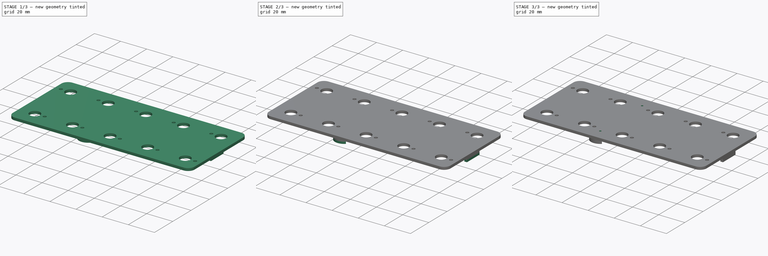
[diagram: build sequence overview — one tinted view per stage of 3, left to right]
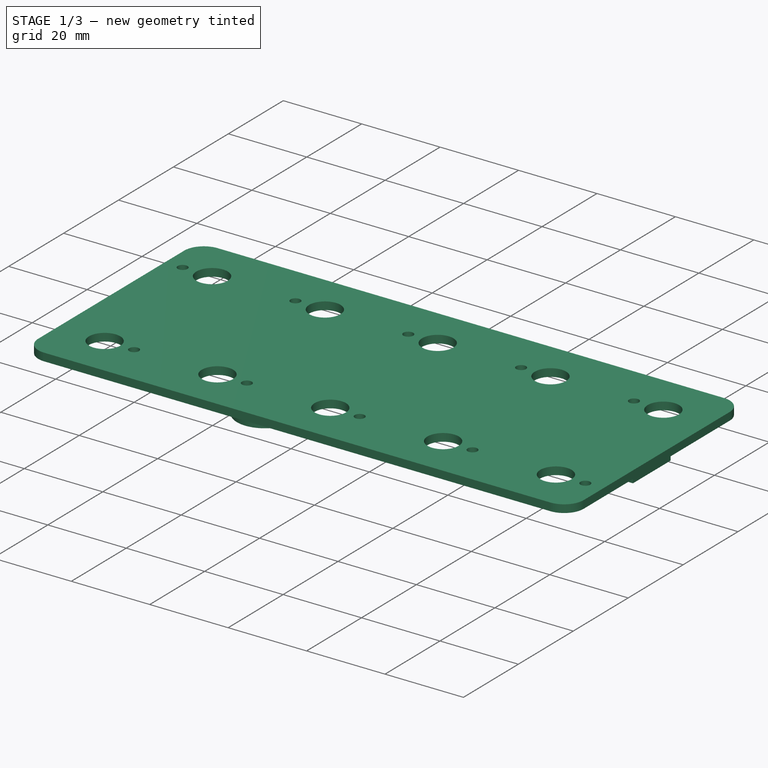
[diagram: stage 1 of 3 — iso view after this stage's code; geometry added in this stage tinted green]
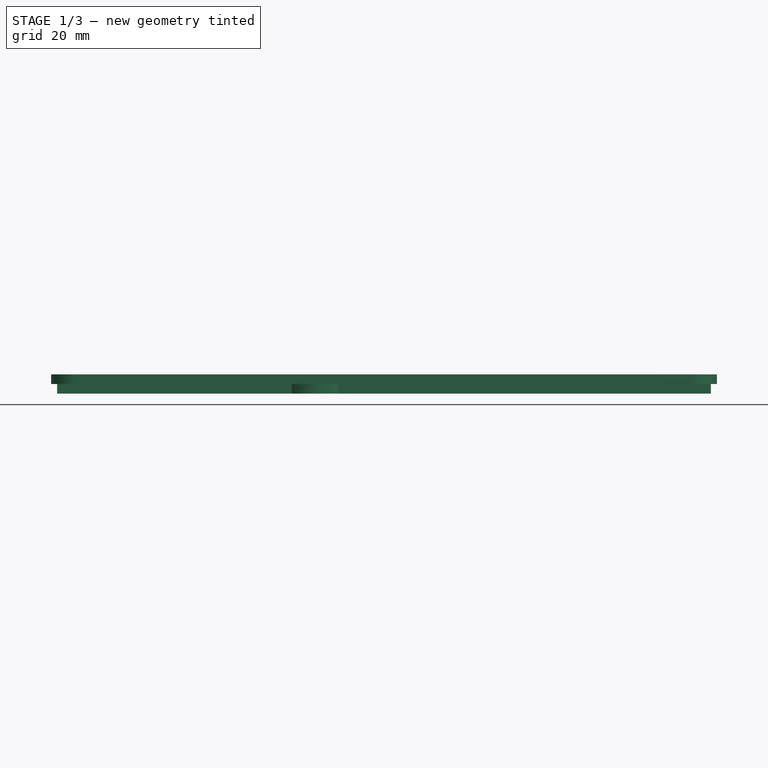
[diagram: stage 1 of 3 — front view after this stage's code; geometry added in this stage tinted green]
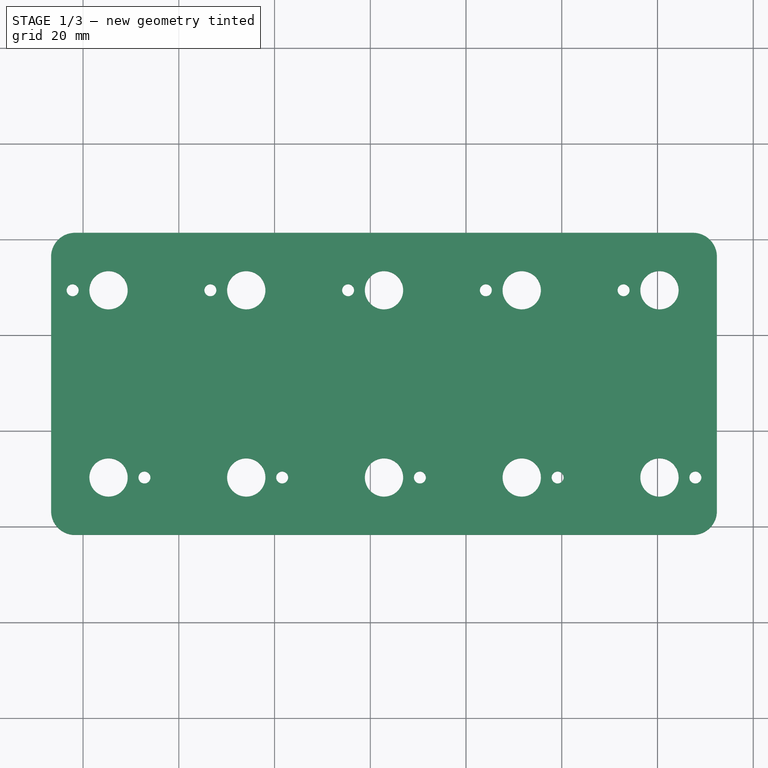
[diagram: stage 1 of 3 — top view after this stage's code; geometry added in this stage tinted green]
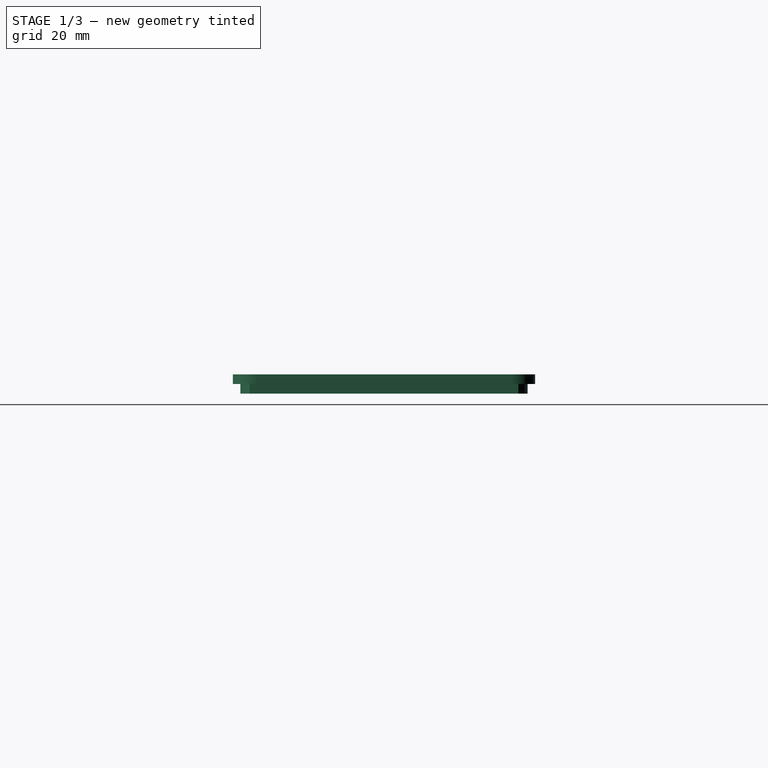
[diagram: stage 1 of 3 — right view after this stage's code; geometry added in this stage tinted green]
FCSTD DOCUMENT  (FreeCAD 0.21R33771 (Git))
Label: PT-10 Top Potentiometer
License: All rights reserved
LicenseURL: https://en.wikipedia.org/wiki/All_rights_reserved
objects: Part::Feature×25, Sketcher::SketchObject×5, PartDesign::Pad×3, App::Part×3, PartDesign::Pocket×2, PartDesign::Body×1
note: 41 computed .brp shape members not serialized (recipe doc carries the construction recipe); baked Part::Feature solids carry a one-line shape summary decoded from their .brp

FEATURE [Sketcher::SketchObject] Sketch
  FullyConstrained = false
  MapMode = 5
  Support = -> [XY_Plane]
  sketch-geometry (116):
    g0: LineSegment StartX=-116.205 StartY=81.635 StartZ=0 EndX=116.205 EndY=81.635 EndZ=0
    g1: LineSegment StartX=116.205 StartY=81.635 StartZ=0 EndX=116.205 EndY=-81.635 EndZ=0
    g2: LineSegment StartX=116.205 StartY=-81.635 StartZ=0 EndX=-116.205 EndY=-81.635 EndZ=0
    g3: LineSegment StartX=-116.205 StartY=-81.635 StartZ=0 EndX=-116.205 EndY=81.635 EndZ=0
    g4: Circle CenterX=-109.295 CenterY=73.045 CenterZ=0 NormalX=0 NormalY=0 NormalZ=1 AngleXU=0 Radius=1.725
    g5: Circle CenterX=109.295 CenterY=73.045 CenterZ=0 NormalX=0 NormalY=0 NormalZ=1 AngleXU=0 Radius=1.725
    g6: Circle CenterX=109.295 CenterY=-73.045 CenterZ=0 NormalX=0 NormalY=0 NormalZ=1 AngleXU=0 Radius=1.725
    g7: Circle CenterX=-109.295 CenterY=-73.045 CenterZ=0 NormalX=0 NormalY=0 NormalZ=1 AngleXU=0 Radius=1.725
    g8: Circle CenterX=-94.6821 CenterY=-10.6383 CenterZ=0 NormalX=0 NormalY=0 NormalZ=1 AngleXU=0 Radius=4
    g9: Circle CenterX=-65.9093 CenterY=-10.6383 CenterZ=0 NormalX=0 NormalY=0 NormalZ=1 AngleXU=0 Radius=4
    g10: Circle CenterX=-37.1364 CenterY=-10.6383 CenterZ=0 NormalX=0 NormalY=0 NormalZ=1 AngleXU=0 Radius=4
    g11: Circle CenterX=-8.36357 CenterY=-10.6383 CenterZ=0 NormalX=0 NormalY=0 NormalZ=1 AngleXU=0 Radius=4
    g12: Circle CenterX=20.4093 CenterY=-10.6383 CenterZ=0 NormalX=0 NormalY=0 NormalZ=1 AngleXU=0 Radius=4
    g13: Circle CenterX=-94.6821 CenterY=-49.7617 CenterZ=0 NormalX=0 NormalY=0 NormalZ=1 AngleXU=0 Radius=4
    g14: Circle CenterX=-65.9093 CenterY=-49.7617 CenterZ=0 NormalX=0 NormalY=0 NormalZ=1 AngleXU=0 Radius=4
    g15: Circle CenterX=-37.1364 CenterY=-49.7617 CenterZ=0 NormalX=0 NormalY=0 NormalZ=1 AngleXU=0 Radius=4
    g16: Circle CenterX=-8.36357 CenterY=-49.7617 CenterZ=0 NormalX=0 NormalY=0 NormalZ=1 AngleXU=0 Radius=4
    g17: Circle CenterX=20.4093 CenterY=-49.7617 CenterZ=0 NormalX=0 NormalY=0 NormalZ=1 AngleXU=0 Radius=4
    g18: LineSegment StartX=-83.4 StartY=63.635 StartZ=0 EndX=83.4 EndY=63.635 EndZ=0
    g19: LineSegment StartX=83.4 StartY=63.635 StartZ=0 EndX=83.4 EndY=21.235 EndZ=0
    g20: LineSegment StartX=83.4 StartY=21.235 StartZ=0 EndX=-83.4 EndY=21.235 EndZ=0
    g21: LineSegment StartX=45.9321 StartY=-1.7 StartZ=0 EndX=97.9321 EndY=-1.7 EndZ=0
    g22: LineSegment StartX=101.932 StartY=-5.7 StartZ=0 EndX=101.932 EndY=-54.7 EndZ=0
    g23: LineSegment StartX=97.9321 StartY=-58.7 StartZ=0 EndX=45.9321 EndY=-58.7 EndZ=0
    g24: LineSegment StartX=41.9321 StartY=-54.7 StartZ=0 EndX=41.9321 EndY=-5.7 EndZ=0
    g25: LineSegment StartX=101.932 StartY=-47.5117 StartZ=0 EndX=116.205 EndY=-47.5117 EndZ=0
    g26: ArcOfCircle CenterX=45.9321 CenterY=-5.7 CenterZ=0 NormalX=0 NormalY=0 NormalZ=1 AngleXU=0 Radius=4 StartAngle=1.5708 EndAngle=3.14159
    g27: GeomPoint X=41.9321 Y=-1.7 Z=0
    g28: ArcOfCircle CenterX=97.9321 CenterY=-5.7 CenterZ=0 NormalX=0 NormalY=0 NormalZ=1 AngleXU=0 Radius=4 StartAngle=0 EndAngle=1.5708
    g29: GeomPoint X=101.932 Y=-1.7 Z=0
    g30: ArcOfCircle CenterX=97.9321 CenterY=-54.7 CenterZ=0 NormalX=0 NormalY=0 NormalZ=1 AngleXU=0 Radius=4 StartAngle=4.71239 EndAngle=6.28319
    g31: GeomPoint X=101.932 Y=-58.7 Z=0
    g32: ArcOfCircle CenterX=45.9321 CenterY=-54.7 CenterZ=0 NormalX=0 NormalY=0 NormalZ=1 AngleXU=0 Radius=4 StartAngle=3.14159 EndAngle=4.71239
    g33: GeomPoint X=41.9321 Y=-58.7 Z=0
    g34: LineSegment StartX=63.7039 StartY=21.235 StartZ=0 EndX=63.7039 EndY=-1.7 EndZ=0
    g35: LineSegment StartX=63.7039 StartY=-58.7 StartZ=0 EndX=63.7039 EndY=-81.635 EndZ=0
    g36: Circle CenterX=-94.6821 CenterY=-10.6383 CenterZ=0 NormalX=0 NormalY=0 NormalZ=1 AngleXU=0 Radius=7.25
    g37: Circle CenterX=-65.9093 CenterY=-10.6383 CenterZ=0 NormalX=0 NormalY=0 NormalZ=1 AngleXU=0 Radius=7.25
    g38: Circle CenterX=-37.1364 CenterY=-10.6383 CenterZ=0 NormalX=0 NormalY=0 NormalZ=1 AngleXU=0 Radius=7.25
    g39: Circle CenterX=-8.36357 CenterY=-10.6383 CenterZ=0 NormalX=0 NormalY=0 NormalZ=1 AngleXU=0 Radius=7.25
    g40: Circle CenterX=20.4093 CenterY=-10.6383 CenterZ=0 NormalX=0 NormalY=0 NormalZ=1 AngleXU=0 Radius=7.25
    g41: Circle CenterX=-94.6821 CenterY=-49.7617 CenterZ=0 NormalX=0 NormalY=0 NormalZ=1 AngleXU=0 Radius=7.25
    g42: Circle CenterX=-65.9093 CenterY=-49.7617 CenterZ=0 NormalX=0 NormalY=0 NormalZ=1 AngleXU=0 Radius=7.25
    g43: Circle CenterX=-37.1364 CenterY=-49.7617 CenterZ=0 NormalX=0 NormalY=0 NormalZ=1 AngleXU=0 Radius=7.25
    g44: Circle CenterX=-8.36357 CenterY=-49.7617 CenterZ=0 NormalX=0 NormalY=0 NormalZ=1 AngleXU=0 Radius=7.25
    g45: Circle CenterX=20.4093 CenterY=-49.7617 CenterZ=0 NormalX=0 NormalY=0 NormalZ=1 AngleXU=0 Radius=7.25
    g46: LineSegment StartX=-101.932 StartY=-49.7617 StartZ=0 EndX=-116.205 EndY=-49.7617 EndZ=0
    g47: LineSegment StartX=-101.932 StartY=-49.7617 StartZ=0 EndX=-94.6821 EndY=-49.7617 EndZ=0
    g48: LineSegment StartX=-87.4321 StartY=-49.7617 StartZ=0 EndX=-73.1593 EndY=-49.7617 EndZ=0
    g49: LineSegment StartX=-58.6593 StartY=-49.7617 StartZ=0 EndX=-44.3864 EndY=-49.7617 EndZ=0
    g50: LineSegment StartX=-29.8864 StartY=-49.7617 StartZ=0 EndX=-15.6136 EndY=-49.7617 EndZ=0
    g51: LineSegment StartX=-1.11357 StartY=-49.7617 StartZ=0 EndX=13.1593 EndY=-49.7617 EndZ=0
    g52: LineSegment StartX=27.6593 StartY=-49.7617 StartZ=0 EndX=41.9321 EndY=-49.7617 EndZ=0
    g53: LineSegment StartX=-37.1364 StartY=-49.7617 StartZ=0 EndX=-37.1364 EndY=-57.0117 EndZ=0
    g54: LineSegment StartX=-37.1364 StartY=-57.0117 StartZ=0 EndX=-37.1364 EndY=-81.635 EndZ=0
    g55: LineSegment StartX=-37.1364 StartY=-42.5117 StartZ=0 EndX=-37.1364 EndY=-17.8883 EndZ=0
    g56: LineSegment StartX=-37.1364 StartY=-3.38833 StartZ=0 EndX=-37.1364 EndY=21.235 EndZ=0
    g57: Circle CenterX=-91.5 CenterY=65.935 CenterZ=0 NormalX=0 NormalY=0 NormalZ=1 AngleXU=0 Radius=1.5
    g58: Circle CenterX=-91.5 CenterY=18.935 CenterZ=0 NormalX=0 NormalY=0 NormalZ=1 AngleXU=0 Radius=1.5
    g59: Circle CenterX=91.5 CenterY=65.935 CenterZ=0 NormalX=0 NormalY=0 NormalZ=1 AngleXU=0 Radius=1.5
    g60: Circle CenterX=91.5 CenterY=18.935 CenterZ=0 NormalX=0 NormalY=0 NormalZ=1 AngleXU=0 Radius=1.5
    g61: LineSegment StartX=-83.4 StartY=21.235 StartZ=0 EndX=-83.4 EndY=42.435 EndZ=0
    g62: LineSegment StartX=-83.4 StartY=42.435 StartZ=0 EndX=-83.4 EndY=63.635 EndZ=0
    g63: LineSegment StartX=-83.4 StartY=42.435 StartZ=0 EndX=-91.5 EndY=42.435 EndZ=0
    g64: LineSegment StartX=-91.5 StartY=42.435 StartZ=0 EndX=-91.5 EndY=65.935 EndZ=0
    g65: LineSegment StartX=-91.5 StartY=42.435 StartZ=0 EndX=-91.5 EndY=18.935 EndZ=0
    g66: Circle CenterX=101.932 CenterY=-59.7 CenterZ=0 NormalX=0 NormalY=0 NormalZ=1 AngleXU=0 Radius=1
    g67: Circle CenterX=41.9321 CenterY=-59.7 CenterZ=0 NormalX=0 NormalY=0 NormalZ=1 AngleXU=0 Radius=1
    g68: Circle CenterX=41.9321 CenterY=-0.7 CenterZ=0 NormalX=0 NormalY=0 NormalZ=1 AngleXU=0 Radius=1
    g69: Circle CenterX=101.932 CenterY=-0.7 CenterZ=0 NormalX=0 NormalY=0 NormalZ=1 AngleXU=0 Radius=1
    g70: LineSegment StartX=97.9321 StartY=-5.7 StartZ=0 EndX=71.9321 EndY=-30.2 EndZ=0
    g71: LineSegment StartX=71.9321 StartY=-30.2 StartZ=0 EndX=45.9321 EndY=-54.7 EndZ=0
    g72: LineSegment StartX=45.9321 StartY=-5.7 StartZ=0 EndX=71.9321 EndY=-30.2 EndZ=0
    g73: LineSegment StartX=71.9321 StartY=-30.2 StartZ=0 EndX=97.9321 EndY=-54.7 EndZ=0
    g74: Circle CenterX=-102.182 CenterY=-10.6383 CenterZ=0 NormalX=0 NormalY=0 NormalZ=1 AngleXU=0 Radius=1.25
    g75: Circle CenterX=-73.4093 CenterY=-10.6383 CenterZ=0 NormalX=0 NormalY=0 NormalZ=1 AngleXU=0 Radius=1.25
    g76: Circle CenterX=-44.6364 CenterY=-10.6383 CenterZ=0 NormalX=0 NormalY=0 NormalZ=1 AngleXU=0 Radius=1.25
    g77: Circle CenterX=-15.8636 CenterY=-10.6383 CenterZ=0 NormalX=0 NormalY=0 NormalZ=1 AngleXU=0 Radius=1.25
    g78: Circle CenterX=12.9093 CenterY=-10.6383 CenterZ=0 NormalX=0 NormalY=0 NormalZ=1 AngleXU=0 Radius=1.25
    g79: Circle CenterX=-87.1821 CenterY=-49.7617 CenterZ=0 NormalX=0 NormalY=0 NormalZ=1 AngleXU=0 Radius=1.25
    g80: Circle CenterX=-58.4093 CenterY=-49.7617 CenterZ=0 NormalX=0 NormalY=0 NormalZ=1 AngleXU=0 Radius=1.25
    g81: Circle CenterX=-29.6364 CenterY=-49.7617 CenterZ=0 NormalX=0 NormalY=0 NormalZ=1 AngleXU=0 Radius=1.25
    g82: Circle CenterX=-0.863571 CenterY=-49.7617 CenterZ=0 NormalX=0 NormalY=0 NormalZ=1 AngleXU=0 Radius=1.25
    g83: Circle CenterX=27.9093 CenterY=-49.7617 CenterZ=0 NormalX=0 NormalY=0 NormalZ=1 AngleXU=0 Radius=1.25
    g84: LineSegment StartX=-116.205 StartY=-66.635 StartZ=0 EndX=-103.205 EndY=-66.635 EndZ=0
    g85: LineSegment StartX=-103.205 StartY=-66.635 StartZ=0 EndX=-103.205 EndY=-81.635 EndZ=0
    g86: LineSegment StartX=-116.205 StartY=66.635 StartZ=0 EndX=-103.205 EndY=66.635 EndZ=0
    g87: LineSegment StartX=-103.205 StartY=66.635 StartZ=0 EndX=-103.205 EndY=81.635 EndZ=0
    g88: LineSegment StartX=103.205 StartY=81.635 StartZ=0 EndX=103.205 EndY=66.635 EndZ=0
    g89: LineSegment StartX=103.205 StartY=66.635 StartZ=0 EndX=116.205 EndY=66.635 EndZ=0
    g90: LineSegment StartX=103.205 StartY=-81.635 StartZ=0 EndX=103.205 EndY=-66.635 EndZ=0
    g91: LineSegment StartX=116.205 StartY=-66.635 StartZ=0 EndX=103.205 EndY=-66.635 EndZ=0
    g92: LineSegment StartX=39.1321 StartY=2.1 StartZ=0 EndX=104.732 EndY=2.1 EndZ=0
    g93: LineSegment StartX=104.732 StartY=2.1 StartZ=0 EndX=104.732 EndY=-62.5 EndZ=0
    g94: LineSegment StartX=104.732 StartY=-62.5 StartZ=0 EndX=39.1321 EndY=-62.5 EndZ=0
    g95: LineSegment StartX=39.1321 StartY=-62.5 StartZ=0 EndX=39.1321 EndY=2.1 EndZ=0
    g96: Circle CenterX=101.932 CenterY=-59.7 CenterZ=0 NormalX=0 NormalY=0 NormalZ=1 AngleXU=0 Radius=1.75
    g97: Circle CenterX=101.932 CenterY=-0.7 CenterZ=0 NormalX=0 NormalY=0 NormalZ=1 AngleXU=0 Radius=1.75
    g98: Circle CenterX=41.9321 CenterY=-0.7 CenterZ=0 NormalX=0 NormalY=0 NormalZ=1 AngleXU=0 Radius=1.75
    g99: Circle CenterX=41.9321 CenterY=-59.7 CenterZ=0 NormalX=0 NormalY=0 NormalZ=1 AngleXU=0 Radius=1.75
    g100: Circle CenterX=-91.5 CenterY=18.935 CenterZ=0 NormalX=0 NormalY=0 NormalZ=1 AngleXU=0 Radius=2.25
    g101: Circle CenterX=-91.5 CenterY=65.935 CenterZ=0 NormalX=0 NormalY=0 NormalZ=1 AngleXU=0 Radius=2.25
    g102: Circle CenterX=91.5 CenterY=65.935 CenterZ=0 NormalX=0 NormalY=0 NormalZ=1 AngleXU=0 Radius=2.25
    g103: Circle CenterX=91.5 CenterY=18.935 CenterZ=0 NormalX=0 NormalY=0 NormalZ=1 AngleXU=0 Radius=2.25
    g104: LineSegment StartX=-101.682 StartY=1.36167 StartZ=0 EndX=27.4093 EndY=1.36167 EndZ=0
    g105: LineSegment StartX=32.4093 StartY=-3.63833 StartZ=0 EndX=32.4093 EndY=-56.7617 EndZ=0
    g106: LineSegment StartX=27.4093 StartY=-61.7617 StartZ=0 EndX=-101.682 EndY=-61.7617 EndZ=0
    g107: LineSegment StartX=-106.682 StartY=-56.7617 StartZ=0 EndX=-106.682 EndY=-3.63833 EndZ=0
    g108: ArcOfCircle CenterX=-101.682 CenterY=-3.63833 CenterZ=0 NormalX=0 NormalY=0 NormalZ=1 AngleXU=0 Radius=5 StartAngle=1.5708 EndAngle=3.14159
    g109: GeomPoint X=-106.682 Y=1.36167 Z=0
    g110: ArcOfCircle CenterX=27.4093 CenterY=-3.63833 CenterZ=0 NormalX=0 NormalY=0 NormalZ=1 AngleXU=0 Radius=5 StartAngle=0 EndAngle=1.5708
    g111: GeomPoint X=32.4093 Y=1.36167 Z=0
    g112: ArcOfCircle CenterX=27.4093 CenterY=-56.7617 CenterZ=0 NormalX=0 NormalY=0 NormalZ=1 AngleXU=0 Radius=5 StartAngle=4.71239 EndAngle=6.28319
    g113: GeomPoint X=32.4093 Y=-61.7617 Z=0
    g114: ArcOfCircle CenterX=-101.682 CenterY=-56.7617 CenterZ=0 NormalX=0 NormalY=0 NormalZ=1 AngleXU=0 Radius=5 StartAngle=3.14159 EndAngle=4.71239
    g115: GeomPoint X=-106.682 Y=-61.7617 Z=0
  constraints (315):
    c: Coincident(g0,g1)
    c: Coincident(g1,g2)
    c: Coincident(g2,g3)
    c: Coincident(g3,g0)
    c: Horizontal(g0)
    c: Horizontal(g2)
    c: Vertical(g1)
    c: Vertical(g3)
    c: Symmetric(g0,g0,g-2)
    c: Symmetric(g0,g2,g-1)
    c: DistanceX(g0,g0) = 232.41
    c: DistanceY(g3,g3) = 163.27
    c: Diameter(g4) = 3.45
    c: DistanceX(g0,g4) = 6.91
    c: DistanceY(g4,g0) = 8.59
    c: Equal(g4,g5)
    c: Equal(g5,g6)
    c: Equal(g6,g7)
    c: Symmetric(g5,g4,g-2)
    c: Symmetric(g6,g4,g-1)
    c: Symmetric(g7,g4,g-1)
    c: Equal(g9,g8)
    c: Equal(g8,g10)
    c: Equal(g10,g11)
    c: Equal(g11,g12)
    c: Equal(g12,g17)
    c: Equal(g17,g16)
    c: Equal(g16,g15)
    c: Equal(g15,g14)
    c: Equal(g14,g13)
    c: Horizontal(g8,g9)
    c: Horizontal(g9,g10)
    c: Horizontal(g10,g11)
    c: Horizontal(g11,g12)
    c: Horizontal(g13,g14)
    c: Horizontal(g14,g15)
    c: Horizontal(g15,g16)
    c: Horizontal(g16,g17)
    c: Vertical(g8,g13)
    c: Vertical(g9,g14)
    c: Vertical(g10,g15)
    c: Vertical(g11,g16)
    c: Vertical(g12,g17)
    c: Coincident(g18,g19)
    c: Coincident(g19,g20)
    c: Coincident(g20,g61)
    c: Coincident(g62,g18)
    c: Horizontal(g18)
    c: Horizontal(g20)
    c: Vertical(g19)
    c: Horizontal(g21)
    c: Horizontal(g23)
    c: Vertical(g22)
    c: Vertical(g24)
    c: Symmetric(g18,g18,g-2)
    c: Diameter(g8) = 8
    c: PointOnObject(g25,g22)
    c: PointOnObject(g25,g1)
    c: Horizontal(g25)
    c: DistanceX(g33,g31) = 60
    c: DistanceX(g18,g18) = 166.8
    c: DistanceY(g61,g62) = 42.4
    c: DistanceY(g31,g29) = 57
    c: PointOnObject(g27,g21)
    c: PointOnObject(g27,g24)
    c: Tangent(g21,g26) = 1.5708
    c: Tangent(g24,g26) = 1.5708
    c: PointOnObject(g29,g21)
    c: PointOnObject(g29,g22)
    c: Tangent(g21,g28) = 1.5708
    c: Tangent(g22,g28) = 1.5708
    c: PointOnObject(g31,g22)
    c: PointOnObject(g31,g23)
    c: Tangent(g22,g30) = 1.5708
    c: Tangent(g23,g30) = 1.5708
    c: PointOnObject(g33,g23)
    c: PointOnObject(g33,g24)
    c: Tangent(g23,g32) = 1.5708
    c: Tangent(g24,g32) = 1.5708
    c: Equal(g26,g28)
    c: Equal(g28,g30)
    c: Equal(g30,g32)
    c: PointOnObject(g34,g20)
    c: PointOnObject(g34,g21)
    c: Vertical(g34)
    c: PointOnObject(g35,g23)
    c: PointOnObject(g35,g2)
    c: Vertical(g35)
    c: Vertical(g34,g35)
    c: Equal(g34,g35)
    c: DistanceY(g18,g0) = 18
    c: DistanceX(g24,g32) = 4
    c: Coincident(g36,g8)
    c: Coincident(g37,g9)
    c: Coincident(g38,g10)
    c: Coincident(g39,g11)
    c: Coincident(g40,g12)
    c: Coincident(g41,g13)
    c: Coincident(g42,g14)
    c: Coincident(g43,g15)
    c: Coincident(g44,g16)
    c: Coincident(g45,g17)
    c: Equal(g41,g42)
    c: Equal(g42,g43)
    c: Equal(g43,g44)
    c: Equal(g44,g45)
    c: Equal(g45,g40)
    c: Equal(g40,g39)
    c: Equal(g39,g38)
    c: Equal(g38,g37)
    c: Equal(g37,g36)
    c: Diameter(g36) = 14.5
    c: PointOnObject(g46,g41)
    c: PointOnObject(g46,g3)
    c: Horizontal(g46)
    c: Coincident(g47,g46)
    c: Coincident(g47,g13)
    c: Horizontal(g47)
    c: PointOnObject(g48,g41)
    c: PointOnObject(g48,g42)
    c: Horizontal(g48)
    c: PointOnObject(g49,g42)
    c: PointOnObject(g49,g43)
    c: Horizontal(g49)
    c: PointOnObject(g50,g43)
    c: PointOnObject(g50,g44)
    c: Horizontal(g50)
    c: PointOnObject(g51,g44)
    c: PointOnObject(g51,g45)
    c: Horizontal(g51)
    c: PointOnObject(g52,g45)
    c: PointOnObject(g52,g24)
    c: Horizontal(g52)
    c: Horizontal(g48,g46)
    c: Horizontal(g46,g49)
    c: Horizontal(g49,g50)
    c: Horizontal(g50,g51)
    c: Horizontal(g51,g52)
    c: Equal(g25,g52)
    c: Equal(g52,g51)
    c: Equal(g51,g50)
    c: Equal(g50,g49)
    c: Equal(g49,g48)
    c: Equal(g48,g46)
    c: Coincident(g53,g15)
    c: PointOnObject(g53,g43)
    c: Vertical(g53)
    c: Coincident(g54,g53)
    c: PointOnObject(g54,g2)
    c: Vertical(g54)
    c: PointOnObject(g55,g43)
    c: PointOnObject(g55,g38)
    c: Vertical(g55)
    c: PointOnObject(g56,g38)
    c: PointOnObject(g56,g20)
    c: Vertical(g56)
    c: Vertical(g53,g55)
    c: Vertical(g55,g56)
    c: Equal(g56,g55)
    c: Equal(g55,g54)
    c: Equal(g60,g59)
    c: Equal(g59,g57)
    c: Equal(g57,g58)
    c: Symmetric(g57,g59,g-2)
    c: Symmetric(g58,g60,g-2)
    c: Vertical(g57,g58)
    c: Diameter(g57) = 3
    c: DistanceY(g58,g57) = 47
    c: Coincident(g61,g62)
    c: Vertical(g61)
    c: Vertical(g62)
    c: Equal(g62,g61)
    c: Coincident(g63,g61)
    c: Horizontal(g63)
    c: Coincident(g64,g63)
    c: Coincident(g64,g57)
    c: Vertical(g64)
    c: Coincident(g65,g63)
    c: Coincident(g65,g58)
    c: Vertical(g65)
    c: Equal(g64,g65)
    c: DistanceX(g57,g59) = 183
    c: Equal(g67,g66)
    c: Horizontal(g67,g66)
    c: Equal(g68,g69)
    c: Equal(g69,g67)
    c: Vertical(g68,g67)
    c: Vertical(g69,g66)
    c: Horizontal(g68,g69)
    c: DistanceY(g66,g69) = 59
    c: Coincident(g70,g28)
    c: Coincident(g71,g32)
    c: Coincident(g72,g26)
    c: Coincident(g73,g30)
    c: Coincident(g70,g71)
    c: Coincident(g72,g73)
    c: Coincident(g70,g72)
    c: Equal(g70,g71)
    c: Equal(g73,g72)
    c: Symmetric(g68,g66,g70)
    c: DistanceX(g67,g66) = 60
    c: Diameter(g68) = 2
    c: PointOnObject(g79,g46)
    c: PointOnObject(g80,g48)
    c: PointOnObject(g81,g49)
    c: PointOnObject(g82,g50)
    c: PointOnObject(g83,g51)
    c: Equal(g74,g75)
    c: Equal(g75,g76)
    c: Equal(g76,g77)
    c: Equal(g77,g78)
    c: Equal(g78,g79)
    c: Equal(g79,g80)
    c: Equal(g80,g81)
    c: Equal(g81,g82)
    c: Equal(g82,g83)
    c: Horizontal(g74,g8)
    c: Horizontal(g8,g75)
    c: Horizontal(g75,g76)
    c: Horizontal(g76,g77)
    c: Horizontal(g77,g78)
    c: DistanceX(g74,g8) = 7.5
    c: DistanceX(g75,g9) = 7.5
    c: DistanceX(g76,g10) = 7.5
    c: DistanceX(g77,g11) = 7.5
    c: DistanceX(g78,g12) = 7.5
    c: Diameter(g74) = 2.5
    c: PointOnObject(g84,g3)
    c: Horizontal(g84)
    c: Coincident(g85,g84)
    c: PointOnObject(g85,g2)
    c: Vertical(g85)
    c: DistanceX(g84,g84) = 13
    c: DistanceY(g85,g85) = 15
    c: PointOnObject(g86,g3)
    c: Horizontal(g86)
    c: Coincident(g87,g86)
    c: PointOnObject(g87,g0)
    c: Vertical(g87)
    c: DistanceX(g86,g86) = 13
    c: DistanceY(g87,g87) = 15
    c: PointOnObject(g88,g0)
    c: Vertical(g88)
    c: Coincident(g89,g88)
    c: PointOnObject(g89,g1)
    c: Horizontal(g89)
    c: DistanceY(g88,g88) = 15
    c: DistanceX(g89,g89) = 13
    c: PointOnObject(g90,g2)
    c: Vertical(g90)
    c: PointOnObject(g91,g1)
    c: Coincident(g91,g90)
    c: Horizontal(g91)
    c: DistanceX(g91,g91) = 13
    c: DistanceY(g90,g90) = 15
    c: Coincident(g92,g93)
    c: Coincident(g93,g94)
    c: Coincident(g94,g95)
    c: Coincident(g95,g92)
    c: Horizontal(g92)
    c: Horizontal(g94)
    c: Vertical(g93)
    c: Vertical(g95)
    c: Symmetric(g93,g92,g70)
    c: DistanceX(g22,g92) = 2.8
    c: DistanceY(g21,g92) = 3.8
    c: Coincident(g96,g66)
    c: Coincident(g97,g69)
    c: Coincident(g98,g68)
    c: Coincident(g99,g67)
    c: Equal(g99,g98)
    c: Equal(g99,g97)
    c: Equal(g99,g96)
    c: Diameter(g99) = 3.5
    c: Coincident(g100,g58)
    c: Coincident(g101,g57)
    c: Coincident(g102,g59)
    c: Coincident(g103,g60)
    c: Equal(g103,g102)
    c: Equal(g102,g101)
    c: Equal(g101,g100)
    c: Diameter(g100) = 4.5
    c: Horizontal(g104)
    c: Horizontal(g106)
    c: Vertical(g105)
    c: Vertical(g107)
    c: DistanceX(g109,g8) = 12
    c: DistanceY(g8,g109) = 12
    c: DistanceX(g17,g113) = 12
    c: DistanceY(g113,g17) = 12
    c: PointOnObject(g109,g107)
    c: PointOnObject(g109,g104)
    c: Tangent(g107,g108) = 1.5708
    c: Tangent(g104,g108) = 1.5708
    c: PointOnObject(g111,g105)
    c: PointOnObject(g111,g104)
    c: Tangent(g105,g110) = 1.5708
    c: Tangent(g104,g110) = 1.5708
    c: PointOnObject(g113,g105)
    c: PointOnObject(g113,g106)
    c: Tangent(g105,g112) = 1.5708
    c: Tangent(g106,g112) = 1.5708
    c: PointOnObject(g115,g106)
    c: PointOnObject(g115,g107)
    c: Tangent(g106,g114) = 1.5708
    c: Tangent(g107,g114) = 1.5708
    c: DistanceX(g107,g108) = 5
    c: Equal(g108,g110)
    c: Equal(g110,g112)
    c: Equal(g112,g114)
    c: DistanceX(g13,g79) = 7.5
    c: DistanceX(g14,g80) = 7.5
    c: DistanceX(g15,g81) = 7.5
    c: DistanceX(g16,g82) = 7.5
    c: DistanceX(g17,g83) = 7.5
FEATURE [PartDesign::Pad] Pad
  Direction = (0,0,1)
  Length = 2
  Length2 = 10
  Profile = -> Sketch
  ReferenceAxis = -> Sketch [N_Axis]
  Type = 0
FEATURE [Part::Feature] Part__Feature  label="AK-1604-N-BWB"
  Placement = pos=(71.93,-30.2,-4.5) rot=(0,0,1;0rad)
  shape: bbox 65 x 69 x 8.9 mm, 1511 faces (baked)
FEATURE [Part::Feature] Part__Feature001  label="WH4004A-LCD-40x4"
  Placement = pos=(-78.72,30.18,-8) rot=(0,0,1;0rad)
  shape: bbox 190 x 54 x 10.6 mm, 24 faces (baked)
FEATURE [Part::Feature] Part__Feature004  label="POT10K v2"
  Placement = pos=(-94.68,-10.64,-9.6) rot=(0,0,1;1.5708rad)
  shape: bbox 17.76 x 25.88 x 24.21 mm, 189 faces (baked)
FEATURE [Part::Feature] Part__Feature005  label="Knob (1)"
  Placement = pos=(-95,-11,2) rot=(1,0,0;1.5708rad)
  shape: bbox 17.32 x 17.32 x 14.5 mm, 177 faces (baked)
FEATURE [Part::Feature] Part__Feature006  label="POT10K v003"
  Placement = pos=(-65.91,-10.64,-9.6) rot=(0,0,1;1.5708rad)
  shape: bbox 17.76 x 25.88 x 24.21 mm, 189 faces (baked)
FEATURE [Part::Feature] Part__Feature007  label="Knob (1)001"
  Placement = pos=(-66,-11,0) rot=(1,0,0;1.5708rad)
  shape: bbox 17.32 x 17.32 x 14.5 mm, 177 faces (baked)
FEATURE [Part::Feature] Part__Feature008  label="POT10K v004"
  Placement = pos=(-37.14,-10.64,-9.6) rot=(0,0,1;1.5708rad)
  shape: bbox 17.76 x 25.88 x 24.21 mm, 189 faces (baked)
FEATURE [Part::Feature] Part__Feature009  label="Knob (1)002"
  Placement = pos=(-37,-11,0) rot=(1,0,0;1.5708rad)
  shape: bbox 17.32 x 17.32 x 14.5 mm, 177 faces (baked)
FEATURE [Part::Feature] Part__Feature010  label="POT10K v005"
  Placement = pos=(-8.36,-10.64,-9.6) rot=(0,0,1;1.5708rad)
  shape: bbox 17.76 x 25.88 x 24.21 mm, 189 faces (baked)
FEATURE [Part::Feature] Part__Feature011  label="Knob (1)003"
  Placement = pos=(-8,-11,0) rot=(1,0,0;1.5708rad)
  shape: bbox 17.32 x 17.32 x 14.5 mm, 177 faces (baked)
FEATURE [Part::Feature] Part__Feature012  label="POT10K v006"
  Placement = pos=(20.41,-10.64,-9.6) rot=(0,0,1;1.5708rad)
  shape: bbox 17.76 x 25.88 x 24.21 mm, 189 faces (baked)
FEATURE [Part::Feature] Part__Feature013  label="Knob (1)004"
  Placement = pos=(21,-11,0) rot=(1,0,0;1.5708rad)
  shape: bbox 17.32 x 17.32 x 14.5 mm, 177 faces (baked)
FEATURE [Part::Feature] Part__Feature014  label="POT10K v007"
  Placement = pos=(-94.68,-49.76,-9.6) rot=(0,0,-1;1.5708rad)
  shape: bbox 17.76 x 25.88 x 24.21 mm, 189 faces (baked)
FEATURE [Part::Feature] Part__Feature015  label="Knob (1)005"
  Placement = pos=(-95,-50,0) rot=(1,0,0;1.5708rad)
  shape: bbox 17.32 x 17.32 x 14.5 mm, 177 faces (baked)
FEATURE [Part::Feature] Part__Feature016  label="POT10K v008"
  Placement = pos=(-65.91,-49.76,-9.6) rot=(0,0,-1;1.5708rad)
  shape: bbox 17.76 x 25.88 x 24.21 mm, 189 faces (baked)
FEATURE [Part::Feature] Part__Feature017  label="Knob (1)006"
  Placement = pos=(-66,-50,0) rot=(1,0,0;1.5708rad)
  shape: bbox 17.32 x 17.32 x 14.5 mm, 177 faces (baked)
FEATURE [Part::Feature] Part__Feature018  label="POT10K v009"
  Placement = pos=(-37.14,-49.76,-9.6) rot=(0,0,-1;1.5708rad)
  shape: bbox 17.76 x 25.88 x 24.21 mm, 189 faces (baked)
FEATURE [Part::Feature] Part__Feature019  label="Knob (1)007"
  Placement = pos=(-37,-50,0) rot=(1,0,0;1.5708rad)
  shape: bbox 17.32 x 17.32 x 14.5 mm, 177 faces (baked)
FEATURE [Part::Feature] Part__Feature020  label="POT10K v010"
  Placement = pos=(-8.36,-49.76,-9.6) rot=(0,0,-1;1.5708rad)
  shape: bbox 17.76 x 25.88 x 24.21 mm, 189 faces (baked)
FEATURE [Part::Feature] Part__Feature021  label="Knob (1)008"
  Placement = pos=(-8,-50,0) rot=(1,0,0;1.5708rad)
  shape: bbox 17.32 x 17.32 x 14.5 mm, 177 faces (baked)
FEATURE [Part::Feature] Part__Feature022  label="POT10K v011"
  Placement = pos=(20.41,-49.76,-9.6) rot=(0,0,-1;1.5708rad)
  shape: bbox 17.76 x 25.88 x 24.21 mm, 189 faces (baked)
FEATURE [Part::Feature] Part__Feature023  label="Knob (1)009"
  Placement = pos=(21,-50,0) rot=(1,0,0;1.5708rad)
  shape: bbox 17.32 x 17.32 x 14.5 mm, 177 faces (baked)
FEATURE [Sketcher::SketchObject] Sketch001
  ExternalGeometry = -> [Sketch]
  FullyConstrained = true
  MapMode = 5
  Support = -> [XY_Plane]
  sketch-geometry (28):
    g0: LineSegment StartX=-105.431 StartY=-23.3383 StartZ=0 EndX=-56.4097 EndY=-23.3383 EndZ=0
    g1: LineSegment StartX=-56.4097 StartY=-23.3383 StartZ=0 EndX=-56.4097 EndY=-7.339 EndZ=0
    g2: LineSegment StartX=-46.6361 StartY=-7.339 StartZ=0 EndX=-46.6361 EndY=-23.3383 EndZ=0
    g3: LineSegment StartX=-46.6361 StartY=-23.3383 StartZ=0 EndX=31.1586 EndY=-23.3383 EndZ=0
    g4: LineSegment StartX=31.1586 StartY=-23.3383 StartZ=0 EndX=31.1586 EndY=-37.0617 EndZ=0
    g5: LineSegment StartX=31.1586 StartY=-37.0617 StartZ=0 EndX=-46.6361 EndY=-37.0617 EndZ=0
    g6: LineSegment StartX=-46.6361 StartY=-37.0617 StartZ=0 EndX=-46.6361 EndY=-53.061 EndZ=0
    g7: LineSegment StartX=-56.4097 StartY=-53.061 StartZ=0 EndX=-56.4097 EndY=-37.0617 EndZ=0
    g8: LineSegment StartX=-56.4097 StartY=-37.0617 StartZ=0 EndX=-105.431 EndY=-37.0617 EndZ=0
    g9: LineSegment StartX=-105.431 StartY=-37.0617 StartZ=0 EndX=-105.431 EndY=-23.3383 EndZ=0
    g10: LineSegment StartX=-56.4097 StartY=-7.339 StartZ=0 EndX=-51.5229 EndY=-7.339 EndZ=0
    g11: LineSegment StartX=-51.5229 StartY=-7.339 StartZ=0 EndX=-46.6361 EndY=-7.339 EndZ=0
    g12: LineSegment StartX=-56.4097 StartY=-53.061 StartZ=0 EndX=-51.5229 EndY=-53.061 EndZ=0
    g13: LineSegment StartX=-51.5229 StartY=-53.061 StartZ=0 EndX=-46.6361 EndY=-53.061 EndZ=0
    g14: LineSegment StartX=-105.431 StartY=-23.3383 StartZ=0 EndX=-106.682 EndY=-23.3383 EndZ=0
    g15: LineSegment StartX=31.1586 StartY=-23.3383 StartZ=0 EndX=32.4093 EndY=-23.3383 EndZ=0
    g16: LineSegment StartX=-106.682 StartY=-3.63833 StartZ=0 EndX=-106.682 EndY=-30.2 EndZ=0
    g17: LineSegment StartX=-106.682 StartY=-30.2 StartZ=0 EndX=-106.682 EndY=-56.7617 EndZ=0
    g18: LineSegment StartX=-56.4097 StartY=-23.3383 StartZ=0 EndX=-56.4097 EndY=-30.2 EndZ=0
    g19: LineSegment StartX=-56.4097 StartY=-30.2 StartZ=0 EndX=-56.4097 EndY=-37.0617 EndZ=0
    g20: LineSegment StartX=-65.9093 StartY=-10.6383 StartZ=0 EndX=-51.5229 EndY=-10.6383 EndZ=0
    g21: LineSegment StartX=-51.5229 StartY=-10.6383 StartZ=0 EndX=-37.1364 EndY=-10.6383 EndZ=0
    g22: LineSegment StartX=-56.4097 StartY=-7.339 StartZ=0 EndX=-56.4097 EndY=-2.13774 EndZ=0
    g23: LineSegment StartX=-46.6361 StartY=-7.339 StartZ=0 EndX=-46.6361 EndY=-2.13774 EndZ=0
    g24: ArcOfCircle CenterX=-51.5229 CenterY=-7.339 CenterZ=0 NormalX=0 NormalY=0 NormalZ=1 AngleXU=0 Radius=7.1368 StartAngle=0.81656 EndAngle=2.32503
    g25: LineSegment StartX=-56.4097 StartY=-53.061 StartZ=0 EndX=-56.4097 EndY=-58.2623 EndZ=0
    g26: LineSegment StartX=-46.6361 StartY=-53.061 StartZ=0 EndX=-46.6361 EndY=-58.2623 EndZ=0
    g27: ArcOfCircle CenterX=-51.5229 CenterY=-53.061 CenterZ=0 NormalX=0 NormalY=0 NormalZ=1 AngleXU=0 Radius=7.1368 StartAngle=3.95815 EndAngle=5.46663
  constraints (82):
    c: Horizontal(g0)
    c: Coincident(g1,g0)
    c: Vertical(g1)
    c: Vertical(g2)
    c: Coincident(g3,g2)
    c: Horizontal(g3)
    c: Coincident(g4,g3)
    c: Vertical(g4)
    c: Coincident(g5,g4)
    c: Horizontal(g5)
    c: Vertical(g6)
    c: Vertical(g7)
    c: Coincident(g8,g7)
    c: Horizontal(g8)
    c: Coincident(g9,g8)
    c: Coincident(g9,g0)
    c: Vertical(g9)
    c: Coincident(g10,g1)
    c: Horizontal(g10)
    c: Coincident(g11,g10)
    c: Coincident(g11,g2)
    c: Horizontal(g1,g2)
    c: Equal(g10,g11)
    c: Coincident(g12,g7)
    c: Horizontal(g12)
    c: Coincident(g13,g12)
    c: Coincident(g13,g6)
    c: Horizontal(g7,g6)
    c: Equal(g13,g12)
    c: DistanceX(g8,g4) = 136.59
    c: Coincident(g14,g0)
    c: PointOnObject(g14,g-3)
    c: Coincident(g15,g3)
    c: PointOnObject(g15,g-4)
    c: Horizontal(g15)
    c: Horizontal(g14)
    c: Equal(g14,g15)
    c: DistanceX(g7,g6) = 9.7736
    c: Coincident(g6,g5)
    c: Horizontal(g5,g7)
    c: Horizontal(g0,g2)
    c: Vertical(g0,g7)
    c: Vertical(g2,g5)
    c: DistanceY(g4,g3) = 13.7234
    c: Coincident(g16,g-3)
    c: PointOnObject(g16,g-3)
    c: Coincident(g17,g16)
    c: Coincident(g17,g-3)
    c: Equal(g16,g17)
    c: Coincident(g18,g0)
    c: Vertical(g18)
    c: Coincident(g19,g18)
    c: Coincident(g19,g7)
    c: Equal(g18,g19)
    c: Horizontal(g18,g16)
    c: Equal(g1,g7)
    c: Coincident(g20,g-5)
    c: Coincident(g21,g20)
    c: Coincident(g21,g-6)
    c: Horizontal(g21)
    c: Equal(g20,g21)
    c: Equal(g11,g10)
    c: DistanceY(g2,g2) = 15.9993
    c: Coincident(g22,g1)
    c: Vertical(g22)
    c: Coincident(g23,g2)
    c: Vertical(g23)
    c: Equal(g22,g23)
    c: Coincident(g24,g10)
    c: Coincident(g24,g22)
    c: Coincident(g24,g23)
    c: Coincident(g25,g7)
    c: Vertical(g25)
    c: Coincident(g26,g6)
    c: Vertical(g26)
    c: Coincident(g27,g12)
    c: Coincident(g27,g26)
    c: Coincident(g27,g25)
    c: Vertical(g20,g24)
    c: Distance(g22,g24) = 7.1368
    c: Distance(g27,g25) = 7.1368
    c: Horizontal(g25,g26)
FEATURE [PartDesign::Pad] Pad001
  BaseFeature = -> Pad
  Direction = (0,0,-1)
  Length = 2
  Length2 = 10
  Profile = -> Sketch001
  ReferenceAxis = -> Sketch001 [N_Axis]
  Type = 0
  UseCustomVector = true
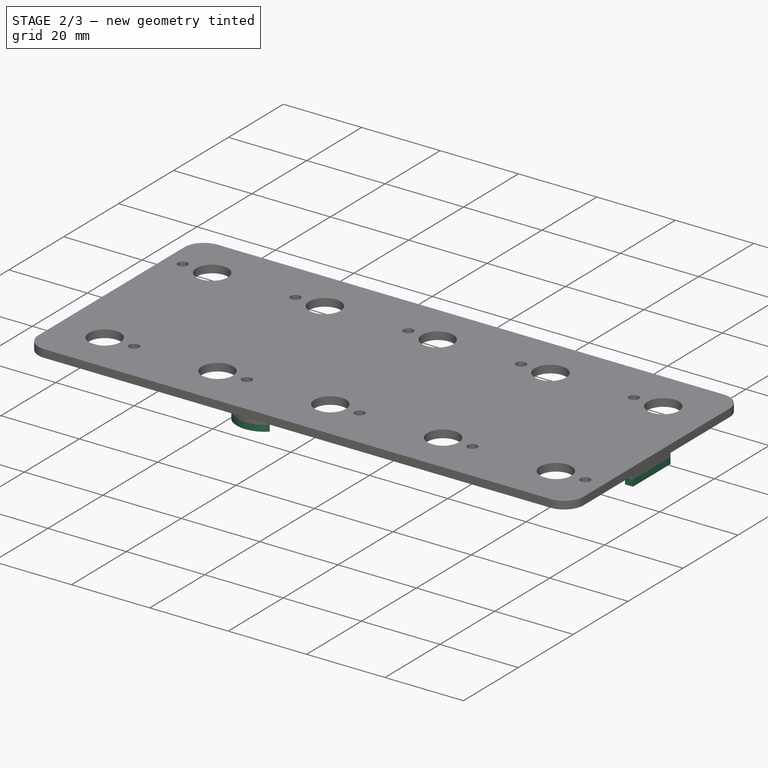
[diagram: stage 2 of 3 — iso view after this stage's code; geometry added in this stage tinted green]
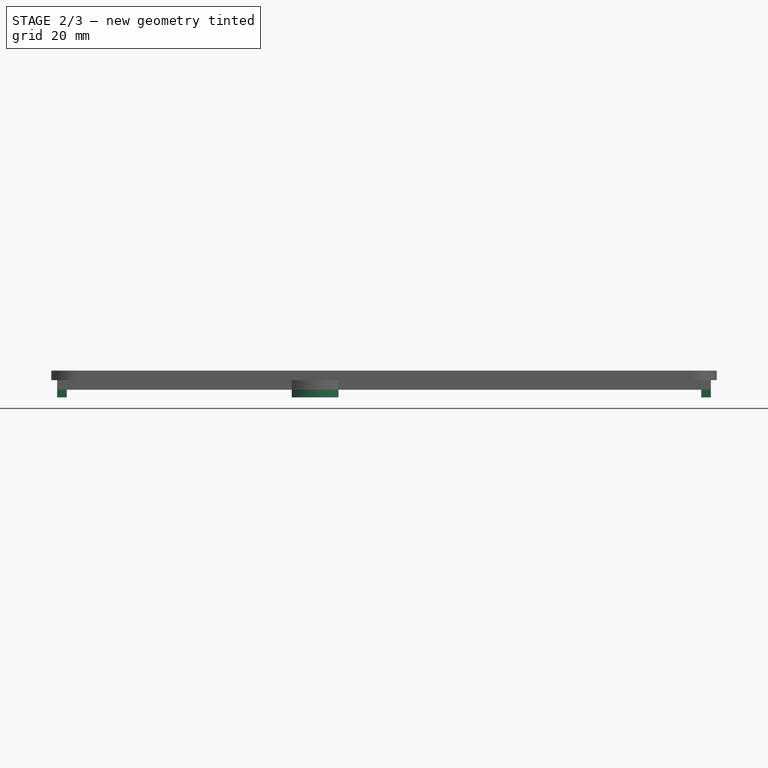
[diagram: stage 2 of 3 — front view after this stage's code; geometry added in this stage tinted green]
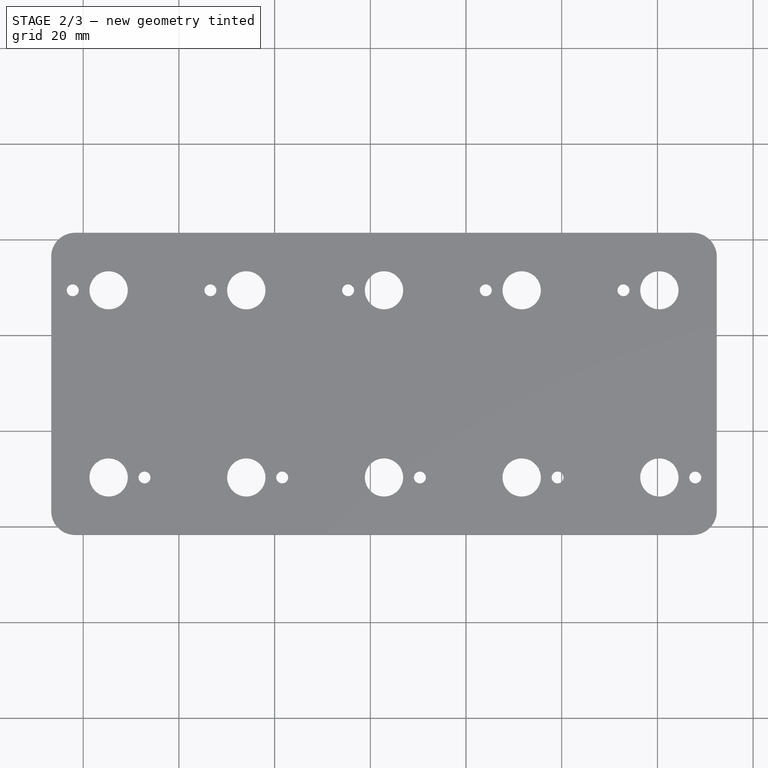
[diagram: stage 2 of 3 — top view after this stage's code; geometry added in this stage tinted green]
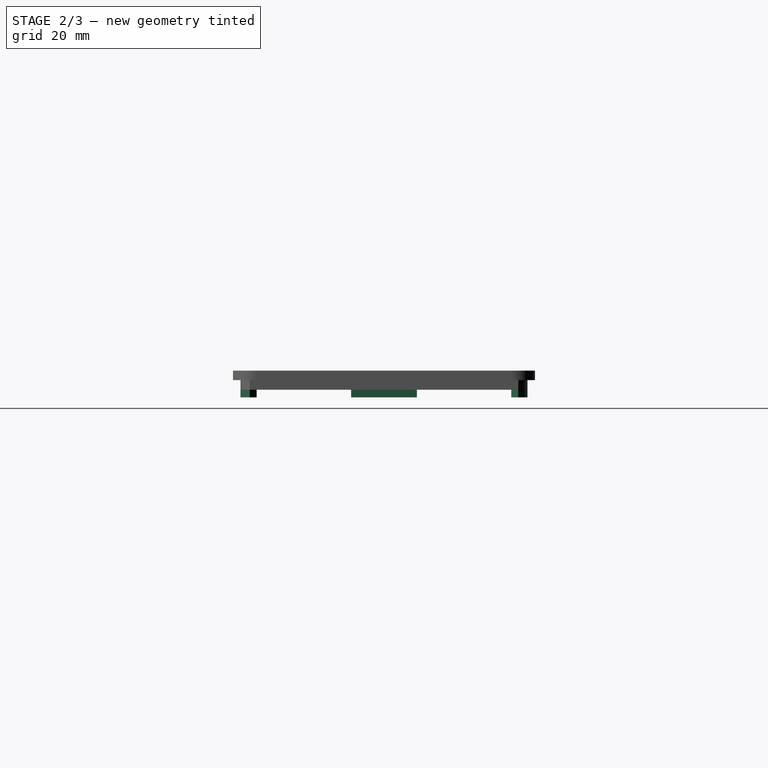
[diagram: stage 2 of 3 — right view after this stage's code; geometry added in this stage tinted green]
FEATURE [Sketcher::SketchObject] Sketch002
  ExternalGeometry = -> [Sketch001]
  FullyConstrained = true
  MapMode = 5
  Support = -> [XY_Plane]
  sketch-geometry (24):
    g0: LineSegment StartX=-105.431 StartY=-23.3383 StartZ=0 EndX=-103.431 EndY=-23.3383 EndZ=0
    g1: LineSegment StartX=-103.431 StartY=-23.3383 StartZ=0 EndX=-103.431 EndY=-37.0617 EndZ=0
    g2: LineSegment StartX=-103.431 StartY=-37.0617 StartZ=0 EndX=-105.431 EndY=-37.0617 EndZ=0
    g3: LineSegment StartX=-105.431 StartY=-37.0617 StartZ=0 EndX=-105.431 EndY=-23.3383 EndZ=0
    g4: LineSegment StartX=29.1586 StartY=-23.3383 StartZ=0 EndX=31.1586 EndY=-23.3383 EndZ=0
    g5: LineSegment StartX=31.1586 StartY=-23.3383 StartZ=0 EndX=31.1586 EndY=-37.0617 EndZ=0
    g6: LineSegment StartX=31.1586 StartY=-37.0617 StartZ=0 EndX=29.1586 EndY=-37.0617 EndZ=0
    g7: LineSegment StartX=29.1586 StartY=-37.0617 StartZ=0 EndX=29.1586 EndY=-23.3383 EndZ=0
    g8: LineSegment StartX=-56.4097 StartY=-7.339 StartZ=0 EndX=-51.5229 EndY=-7.339 EndZ=0
    g9: LineSegment StartX=-51.5229 StartY=-7.339 StartZ=0 EndX=-46.6361 EndY=-7.339 EndZ=0
    g10: ArcOfCircle CenterX=-51.5229 CenterY=-7.339 CenterZ=0 NormalX=0 NormalY=0 NormalZ=1 AngleXU=0 Radius=7.1368 StartAngle=0.81656 EndAngle=2.32503
    g11: LineSegment StartX=-56.4097 StartY=-2.13774 StartZ=0 EndX=-51.5229 EndY=-7.339 EndZ=0
    g12: LineSegment StartX=-51.5229 StartY=-7.339 StartZ=0 EndX=-46.6361 EndY=-2.13774 EndZ=0
    g13: ArcOfCircle CenterX=-51.5229 CenterY=-7.339 CenterZ=0 NormalX=0 NormalY=0 NormalZ=1 AngleXU=0 Radius=5.1368 StartAngle=0.81656 EndAngle=2.32503
    g14: LineSegment StartX=-56.4097 StartY=-2.13774 StartZ=0 EndX=-55.0402 EndY=-3.59533 EndZ=0
    g15: LineSegment StartX=-48.0055 StartY=-3.59533 StartZ=0 EndX=-46.6361 EndY=-2.13774 EndZ=0
    g16: LineSegment StartX=-56.4097 StartY=-53.061 StartZ=0 EndX=-51.5229 EndY=-53.061 EndZ=0
    g17: LineSegment StartX=-51.5229 StartY=-53.061 StartZ=0 EndX=-46.6361 EndY=-53.061 EndZ=0
    g18: LineSegment StartX=-56.4097 StartY=-58.2623 StartZ=0 EndX=-51.5229 EndY=-53.061 EndZ=0
    g19: LineSegment StartX=-51.5229 StartY=-53.061 StartZ=0 EndX=-46.6361 EndY=-58.2623 EndZ=0
    g20: ArcOfCircle CenterX=-51.5229 CenterY=-53.061 CenterZ=0 NormalX=0 NormalY=0 NormalZ=1 AngleXU=0 Radius=5.1368 StartAngle=3.95815 EndAngle=5.46663
    g21: LineSegment StartX=-55.0402 StartY=-56.8047 StartZ=0 EndX=-56.4097 EndY=-58.2623 EndZ=0
    g22: LineSegment StartX=-48.0055 StartY=-56.8047 StartZ=0 EndX=-46.6361 EndY=-58.2623 EndZ=0
    g23: ArcOfCircle CenterX=-51.5229 CenterY=-53.061 CenterZ=0 NormalX=0 NormalY=0 NormalZ=1 AngleXU=0 Radius=7.1368 StartAngle=3.95815 EndAngle=5.46663
  constraints (60):
    c: Coincident(g0,g1)
    c: Coincident(g1,g2)
    c: Coincident(g2,g3)
    c: Coincident(g3,g0)
    c: Horizontal(g0)
    c: Horizontal(g2)
    c: Vertical(g1)
    c: Coincident(g0,g-3)
    c: Coincident(g2,g-4)
    c: DistanceX(g2,g1) = 2
    c: Coincident(g4,g5)
    c: Coincident(g5,g6)
    c: Coincident(g6,g7)
    c: Coincident(g7,g4)
    c: Horizontal(g4)
    c: Horizontal(g6)
    c: Vertical(g7)
    c: Coincident(g5,g-6)
    c: Coincident(g4,g-5)
    c: Equal(g6,g2)
    c: Coincident(g8,g-7)
    c: Horizontal(g8)
    c: Coincident(g9,g8)
    c: Coincident(g9,g-8)
    c: Equal(g8,g9)
    c: Coincident(g10,g-7)
    c: Coincident(g10,g-8)
    c: Coincident(g11,g10)
    c: Coincident(g11,g10)
    c: Coincident(g12,g10)
    c: Coincident(g12,g10)
    c: Coincident(g13,g10)
    c: PointOnObject(g13,g11)
    c: PointOnObject(g13,g12)
    c: Distance(g13,g10) = 2
    c: Coincident(g14,g10)
    c: Coincident(g14,g13)
    c: Coincident(g15,g13)
    c: Coincident(g15,g10)
    c: Coincident(g16,g-9)
    c: Horizontal(g16)
    c: Coincident(g17,g16)
    c: Coincident(g17,g-10)
    c: Equal(g17,g16)
    c: Coincident(g18,g-9)
    c: Coincident(g18,g16)
    c: Coincident(g19,g16)
    c: Coincident(g19,g-10)
    c: Coincident(g20,g16)
    c: PointOnObject(g20,g18)
    c: PointOnObject(g20,g19)
    c: Distance(g20,g19) = 2
    c: Coincident(g21,g20)
    c: Coincident(g21,g18)
    c: Coincident(g22,g20)
    c: Coincident(g22,g19)
    c: Coincident(g23,g20)
    c: Coincident(g23,g21)
    c: Coincident(g23,g22)
    c: Coincident(g10,g8)
FEATURE [PartDesign::Pad] Pad002
  BaseFeature = -> Pad001
  Direction = (0,0,1)
  Length = 3.6
  Length2 = 10
  Profile = -> Sketch002
  ReferenceAxis = -> Sketch002 [N_Axis]
  Reversed = true
  Type = 0
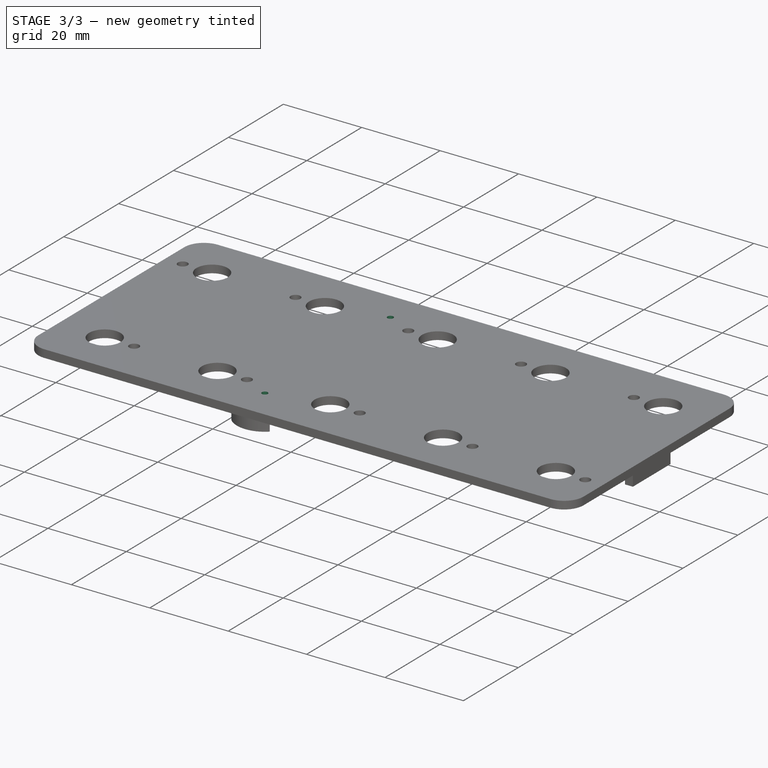
[diagram: stage 3 of 3 — iso view after this stage's code; geometry added in this stage tinted green]
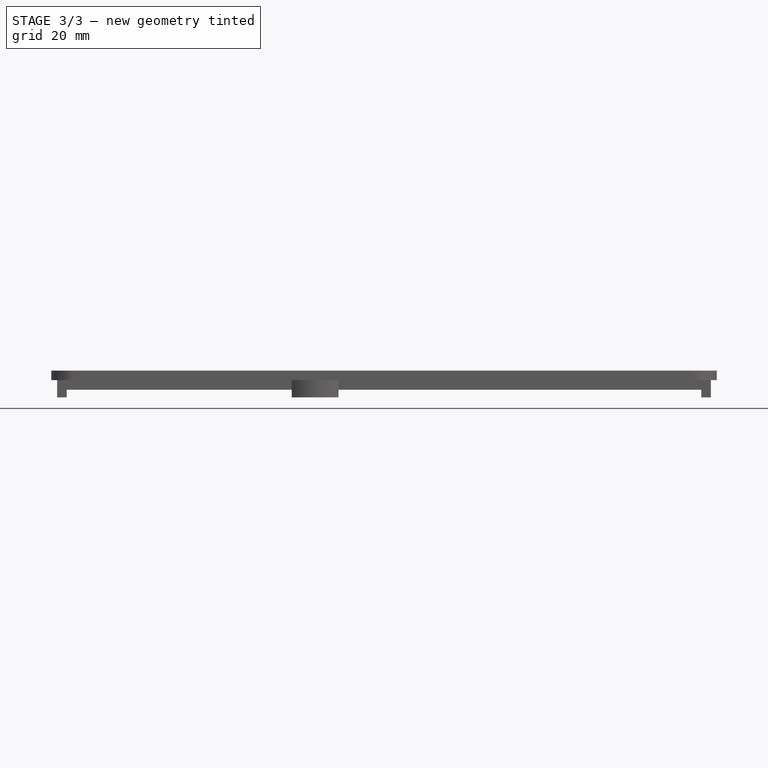
[diagram: stage 3 of 3 — front view after this stage's code; geometry added in this stage tinted green]
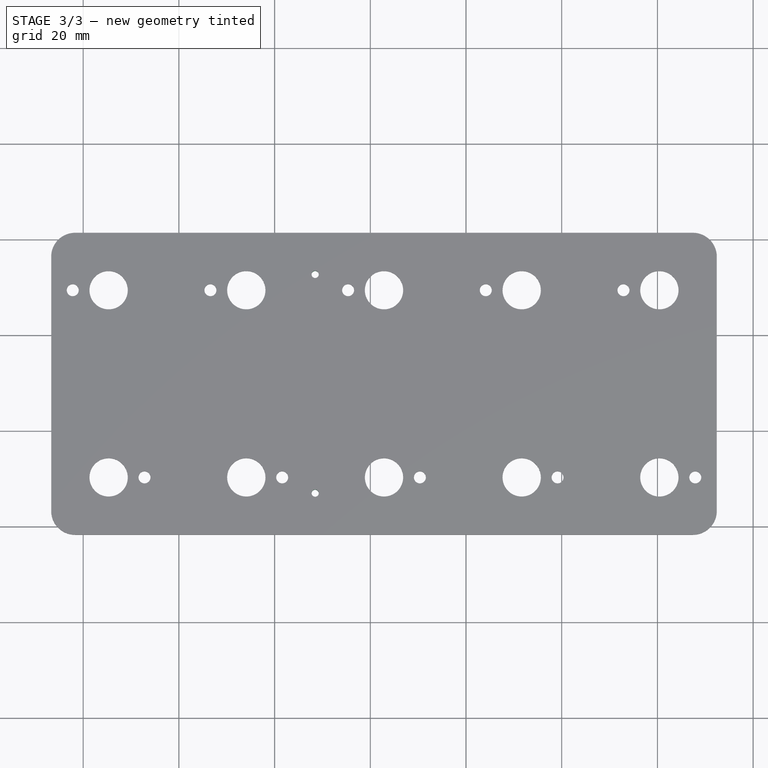
[diagram: stage 3 of 3 — top view after this stage's code; geometry added in this stage tinted green]
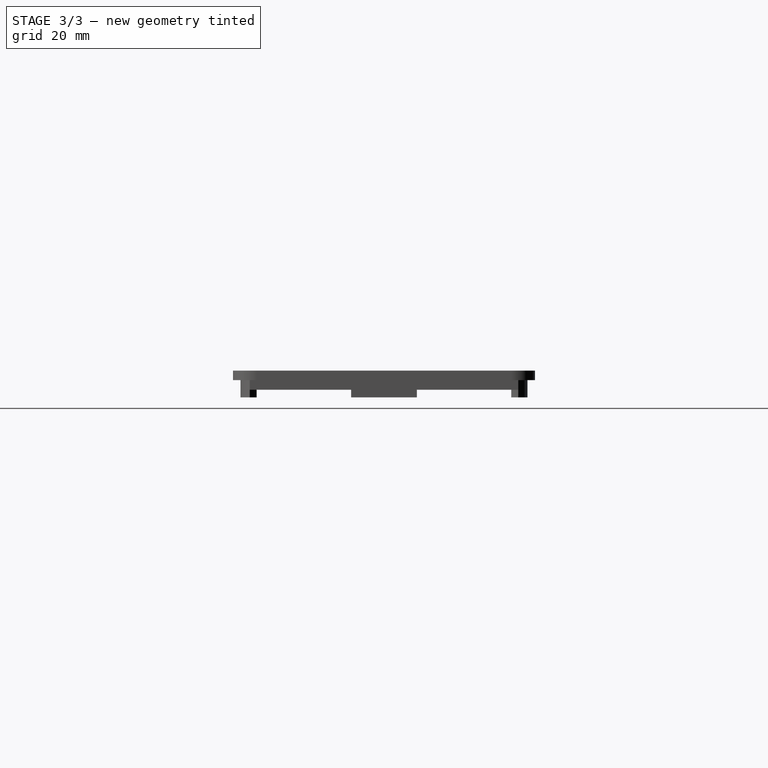
[diagram: stage 3 of 3 — right view after this stage's code; geometry added in this stage tinted green]
FEATURE [Sketcher::SketchObject] Sketch003
  ExternalGeometry = -> [Sketch001]
  FullyConstrained = true
  MapMode = 5
  Support = -> [XY_Plane]
  sketch-geometry (6):
    g0: LineSegment StartX=-56.4097 StartY=-53.061 StartZ=0 EndX=-51.5229 EndY=-53.061 EndZ=0
    g1: LineSegment StartX=-51.5229 StartY=-53.061 StartZ=0 EndX=-46.6361 EndY=-53.061 EndZ=0
    g2: LineSegment StartX=-56.4097 StartY=-7.339 StartZ=0 EndX=-51.5229 EndY=-7.339 EndZ=0
    g3: LineSegment StartX=-51.5229 StartY=-7.339 StartZ=0 EndX=-46.6361 EndY=-7.339 EndZ=0
    g4: Circle CenterX=-51.5229 CenterY=-7.339 CenterZ=0 NormalX=0 NormalY=0 NormalZ=1 AngleXU=0 Radius=0.75
    g5: Circle CenterX=-51.5229 CenterY=-53.061 CenterZ=0 NormalX=0 NormalY=0 NormalZ=1 AngleXU=0 Radius=0.75
  constraints (14):
    c: Coincident(g0,g-5)
    c: Horizontal(g0)
    c: Coincident(g1,g0)
    c: Coincident(g1,g-6)
    c: Equal(g1,g0)
    c: Coincident(g2,g-3)
    c: Horizontal(g2)
    c: Coincident(g3,g2)
    c: Coincident(g3,g-4)
    c: Equal(g2,g3)
    c: Coincident(g4,g2)
    c: Coincident(g5,g0)
    c: Equal(g4,g5)
    c: Diameter(g4) = 1.5
FEATURE [PartDesign::Pocket] Pocket
  BaseFeature = -> Pad002
  Direction = (0,0,-1)
  Length = 5
  Length2 = 5
  Profile = -> Sketch003
  ReferenceAxis = -> Sketch003 [N_Axis]
  Type = 4
FEATURE [Sketcher::SketchObject] Sketch004
  ExternalGeometry = -> [Sketch001]
  FullyConstrained = true
  MapMode = 5
  Support = -> [XY_Plane]
  sketch-geometry (10):
    g0: LineSegment StartX=-56.4097 StartY=-23.3383 StartZ=0 EndX=-56.4097 EndY=-30.2 EndZ=0
    g1: LineSegment StartX=-56.4097 StartY=-30.2 StartZ=0 EndX=-56.4097 EndY=-37.0617 EndZ=0
    g2: LineSegment StartX=-54.0319 StartY=-13.2312 StartZ=0 EndX=-50.2819 EndY=-13.2312 EndZ=0
    g3: LineSegment StartX=-50.2819 StartY=-13.2312 StartZ=0 EndX=-50.2819 EndY=-28.4303 EndZ=0
    g4: LineSegment StartX=-50.2819 StartY=-28.4303 StartZ=0 EndX=-54.0319 EndY=-28.4303 EndZ=0
    g5: LineSegment StartX=-54.0319 StartY=-28.4303 StartZ=0 EndX=-54.0319 EndY=-13.2312 EndZ=0
    g6: LineSegment StartX=-54.0319 StartY=-31.9697 StartZ=0 EndX=-50.2819 EndY=-31.9697 EndZ=0
    g7: LineSegment StartX=-50.2819 StartY=-31.9697 StartZ=0 EndX=-50.2819 EndY=-47.1688 EndZ=0
    g8: LineSegment StartX=-50.2819 StartY=-47.1688 StartZ=0 EndX=-54.0319 EndY=-47.1688 EndZ=0
    g9: LineSegment StartX=-54.0319 StartY=-47.1688 StartZ=0 EndX=-54.0319 EndY=-31.9697 EndZ=0
  constraints (30):
    c: Coincident(g0,g-4)
    c: Vertical(g0)
    c: Coincident(g1,g0)
    c: PointOnObject(g1,g-5)
    c: Vertical(g1)
    c: Equal(g0,g1)
    c: Coincident(g2,g3)
    c: Coincident(g3,g4)
    c: Coincident(g4,g5)
    c: Coincident(g5,g2)
    c: Horizontal(g2)
    c: Horizontal(g4)
    c: Vertical(g3)
    c: Vertical(g5)
    c: Coincident(g6,g7)
    c: Coincident(g7,g8)
    c: Coincident(g8,g9)
    c: Coincident(g9,g6)
    c: Horizontal(g6)
    c: Horizontal(g8)
    c: Vertical(g7)
    c: Vertical(g9)
    c: Equal(g2,g6)
    c: Equal(g5,g9)
    c: Vertical(g4,g6)
    c: DistanceX(g2,g2) = 3.75
    c: DistanceX(g0,g2) = 2.3778
    c: DistanceY(g7,g7) = 15.1991
    c: DistanceY(g0,g4) = 1.7697
    c: DistanceY(g6,g0) = 1.7697
FEATURE [PartDesign::Pocket] Pocket001
  BaseFeature = -> Pocket
  Direction = (0,0,-1)
  Length = 3
  Length2 = 5
  Profile = -> Sketch004
  ReferenceAxis = -> Sketch004 [N_Axis]
  Type = 0
FEATURE [PartDesign::Body] Body  label="Corps"
  Group = -> [Sketch,Pad,Sketch001,Pad001,Sketch002,Pad002,Sketch003,Pocket,Sketch004,Pocket001]
  Origin = -> Origin
  Tip = -> Pocket001
FEATURE [Part::Feature] Part__Feature024  label="JST_B7B_PH_K"
  shape: bbox 15.9 x 4.55 x 9.4 mm, 233 faces (baked)
FEATURE [App::Part] JST_PH_B7B_PH_K_1x07_P2_00mm_Vertical  label="JST_PH_B7B-PH-K_1x07_P2.00mm_Vertical"
  Group = -> [Part__Feature024]
  Origin = -> Origin001
  Placement = pos=(-72.5696,0.9525,-0.05) rot=(0.707107,-0.707107,0;3.14159rad)
FEATURE [Part::Feature] Part__Feature025  label="JST_B7B_PH_K001"
  shape: bbox 15.9 x 4.55 x 9.4 mm, 233 faces (baked)
FEATURE [App::Part] JST_PH_B7B_PH_K_1x07_P2_00mm_Vertical001  label="JST_PH_B7B-PH-K_1x07_P2.00mm_Vertical001"
  Group = -> [Part__Feature025]
  Origin = -> Origin002
  Placement = pos=(-72.5696,19.6909,-0.05) rot=(0.707107,-0.707107,0;3.14159rad)
FEATURE [Part::Feature] Part__Feature026  label="_autosave-WH148_PCB"
  shape: bbox 132.1 x 55.5 x 1.6 mm, 30 faces (baked)
FEATURE [App::Part] WH148_1  label="WH148 1"
  Group = -> [JST_PH_B7B_PH_K_1x07_P2_00mm_Vertical,JST_PH_B7B_PH_K_1x07_P2_00mm_Vertical001,Part__Feature026]
  Origin = -> Origin003
  Placement = pos=(20.41,-34.52,-3.6) rot=(0,0,1;0rad)
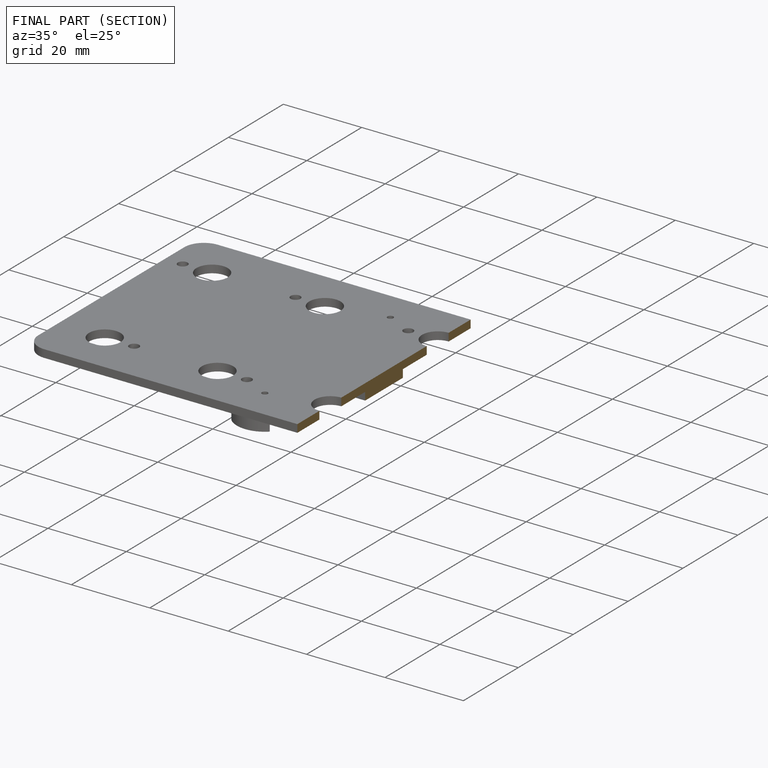
[diagram: finished part — half-section view (interior)]
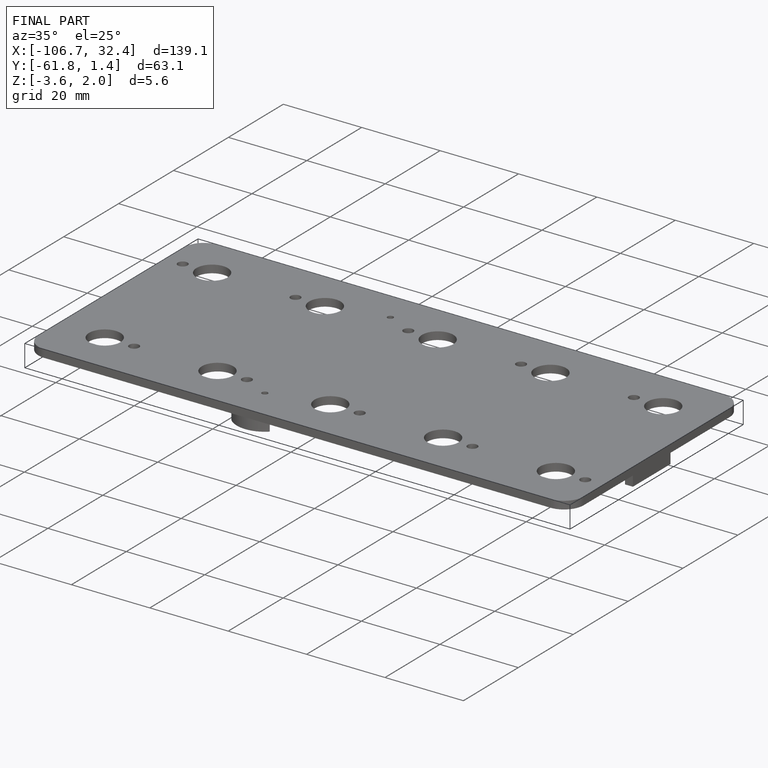
[diagram: finished part — iso view with bounding-box wireframe]
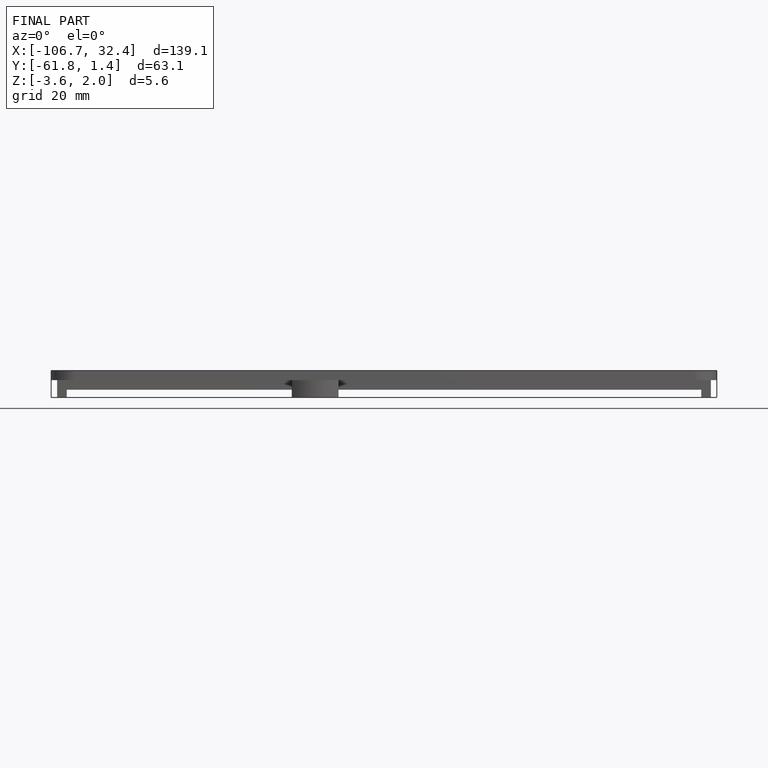
[diagram: finished part — front view with bounding-box wireframe]
